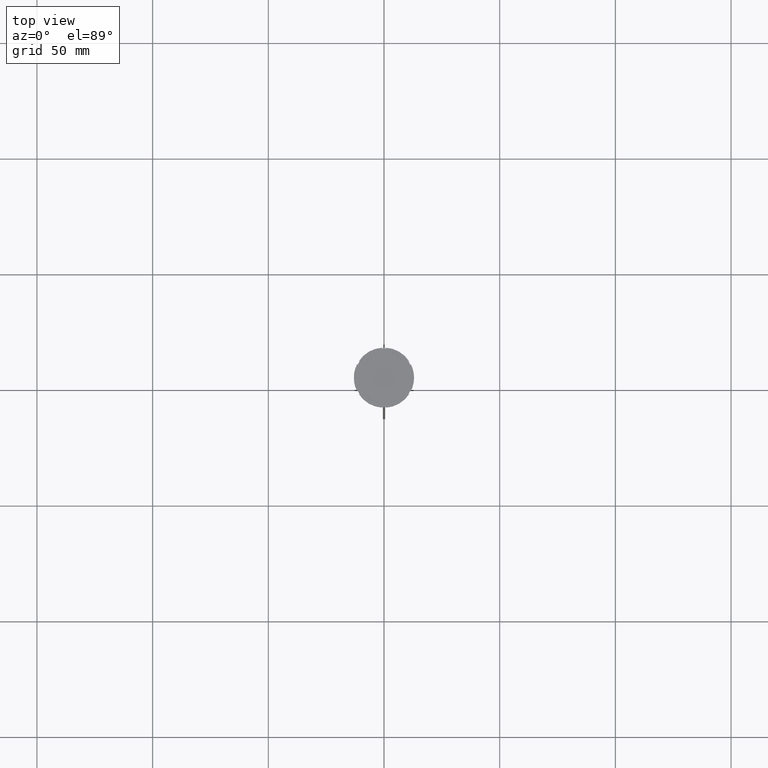
[diagram: clean part render]
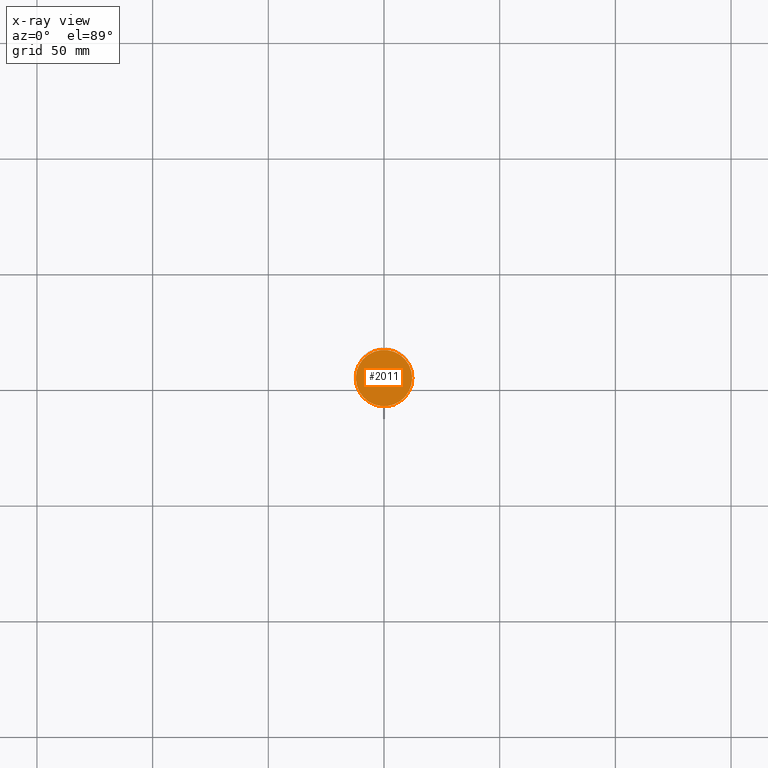
[diagram: x-ray — body ghosted, one internal face saturated and labeled with its STEP entity id]
A machine part, top view, then the same camera in x-ray: the body is ghosted and one INTERNAL B-rep face — a face not visible from any outside direction — is saturated and labeled: STEP entity #2011.
In plain terms, the highlighted planar face has unit normal (0, 0, -1).
Its self-contained STEP definition (entity closure, byte-faithful):
#130 = ORIENTED_EDGE ( 'NONE', *, *, #2402, .T. ) ;
#137 = CARTESIAN_POINT ( 'NONE',  ( 12.20000000000000639, 1.512438796946981880E-15, -12.00000000000000000 ) ) ;
#425 = EDGE_CURVE ( 'NONE', #2738, #1303, #2532, .T. ) ;
#495 = PLANE ( 'NONE',  #676 ) ;
#520 = DIRECTION ( 'NONE',  ( -1.000000000000000000, 0.000000000000000000, -0.000000000000000000 ) ) ;
#628 = AXIS2_PLACEMENT_3D ( 'NONE', #1765, #1129, #2680 ) ;
#676 = AXIS2_PLACEMENT_3D ( 'NONE', #2483, #1811, #520 ) ;
#705 = CARTESIAN_POINT ( 'NONE',  ( 0.000000000000000000, 0.000000000000000000, -12.00000000000000000 ) ) ;
#768 = AXIS2_PLACEMENT_3D ( 'NONE', #705, #2514, #952 ) ;
#952 = DIRECTION ( 'NONE',  ( -1.000000000000000000, 0.000000000000000000, 0.000000000000000000 ) ) ;
#1129 = DIRECTION ( 'NONE',  ( -0.000000000000000000, -0.000000000000000000, 1.000000000000000000 ) ) ;
#1303 = VERTEX_POINT ( 'NONE', #137 ) ;
#1611 = EDGE_LOOP ( 'NONE', ( #2339, #130 ) ) ;
#1692 = CIRCLE ( 'NONE', #768, 12.20000000000000639 ) ;
#1765 = CARTESIAN_POINT ( 'NONE',  ( 0.000000000000000000, 0.000000000000000000, -12.00000000000000000 ) ) ;
#1811 = DIRECTION ( 'NONE',  ( 0.000000000000000000, 0.000000000000000000, -1.000000000000000000 ) ) ;
#2011 = ADVANCED_FACE ( 'NONE', ( #2109 ), #495, .F. ) ;
#2109 = FACE_OUTER_BOUND ( 'NONE', #1611, .T. ) ;
#2339 = ORIENTED_EDGE ( 'NONE', *, *, #425, .T. ) ;
#2402 = EDGE_CURVE ( 'NONE', #1303, #2738, #1692, .T. ) ;
#2483 = CARTESIAN_POINT ( 'NONE',  ( 0.000000000000000000, 0.000000000000000000, -12.00000000000000000 ) ) ;
#2514 = DIRECTION ( 'NONE',  ( -0.000000000000000000, -0.000000000000000000, 1.000000000000000000 ) ) ;
#2532 = CIRCLE ( 'NONE', #628, 12.20000000000000639 ) ;
#2680 = DIRECTION ( 'NONE',  ( -1.000000000000000000, 0.000000000000000000, 0.000000000000000000 ) ) ;
#2738 = VERTEX_POINT ( 'NONE', #2863 ) ;
#2863 = CARTESIAN_POINT ( 'NONE',  ( -12.20000000000000639, 0.000000000000000000, -12.00000000000000000 ) ) ;